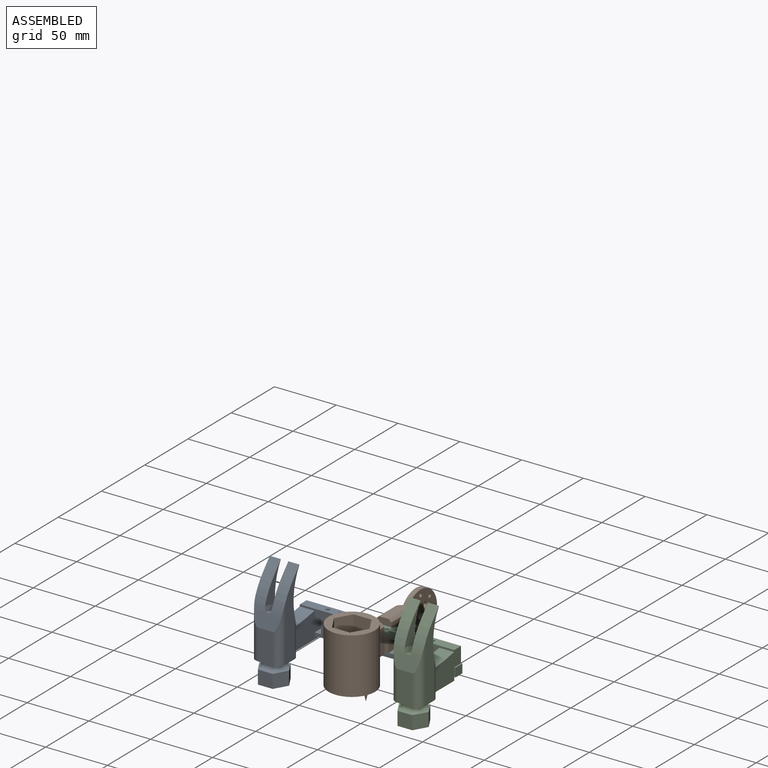
[diagram: assembled view]
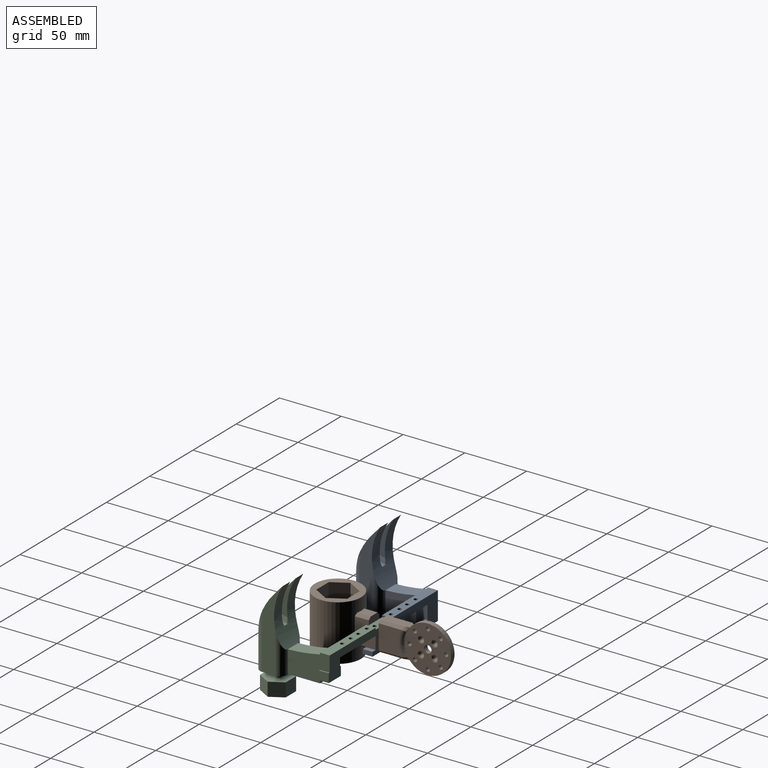
[diagram: assembled view, second angle]
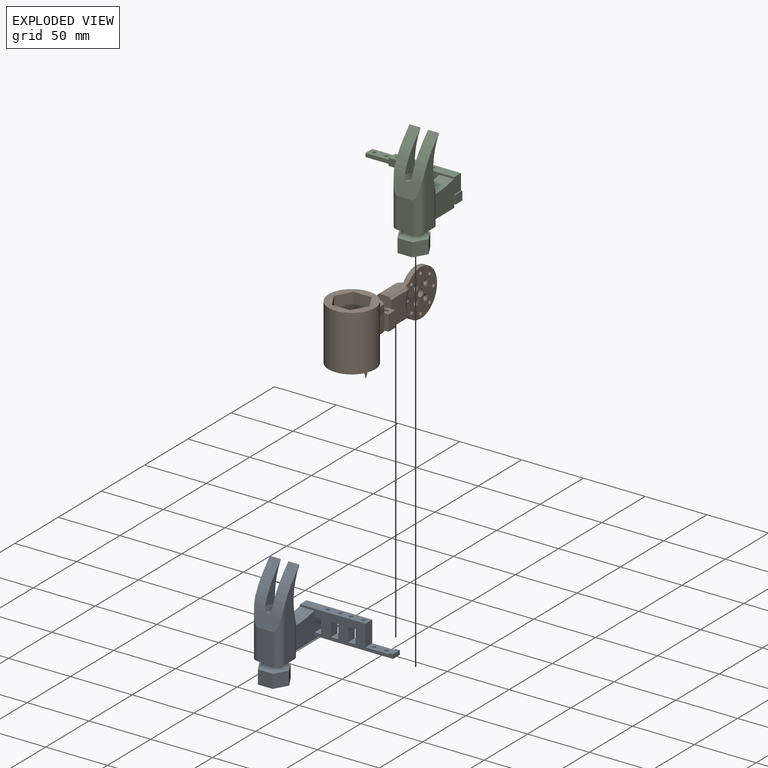
[diagram: exploded view]
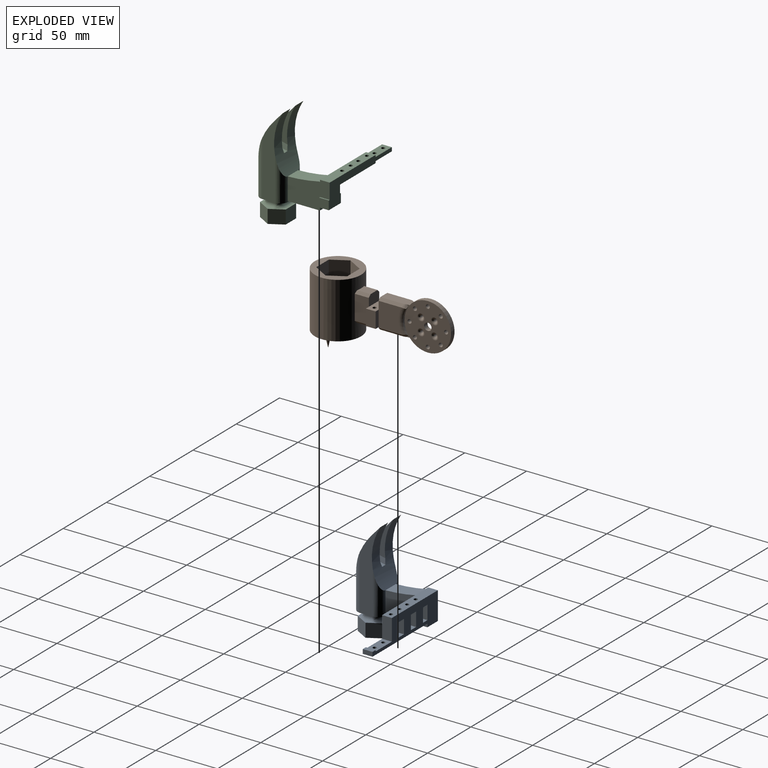
[diagram: exploded view, second angle]
ASSEMBLY  parts=3 mates=2
PART A: 89 faces, bbox 81.7x59x84.3 mm
  f0: plane 17.29x7.85mm, normal (1,0,0), area 135.8mm2, adj f7,f8,f18,f74
  f1: plane 7.85x6mm, normal (0,0,1), area 47.1mm2, adj f7,f18,f79,f82
  f2: plane 7.85x5.13mm, normal (0,0,-1), area 40.2mm2, adj f7,f18,f19,f83
  f3: plane 7.85x5.13mm, normal (0,0,1), area 40.2mm2, adj f7,f18,f19,f83
  f4: cylinder r=1.47mm len=6mm, axis (0,0,-1), area 43.9mm2, adj f5,f74,f80,f81
  f5: plane 7.85x6mm, normal (0,0,-1), area 44.7mm2, adj f4,f7,f18,f76,f80
  f6: plane 7.85x6mm, normal (0,0,1), area 47.1mm2, adj f7,f18,f76,f80
  f7: plane 75.5x22.5mm, normal (0,1,0), area 950.2mm2, adj f0,f1,f2,f3,f5,f6,f8,f9
  f8: plane 18.75x7.85mm, normal (0,0,1), area 133.5mm2, adj f0,f7,f18,f85,f86,f87
  f9: plane 63.5x7.85mm, normal (0,0,-1), area 484.8mm2, adj f7,f18,f19,f75,f85,f86
  f10: plane 12x0.88mm, normal (0,0,1), area 10.6mm2, adj f11,f18,f19,f72
  f11: plane 33.95x22.5mm, normal (-1,0,0), area 676.6mm2, adj f7,f10,f18,f20,f62,f72,f74
  f12: cylinder r=46.09mm len=48.38mm, axis (1,0,0), area 980.1mm2, adj f13,f59,f60,f61,f62,f63,f66,f67
  f13: plane 9.02x8.04mm, normal (0,-0.75,0.67), area 97.4mm2, adj f12,f59,f66,f71
  f14: plane 21.89x10.47mm, normal (0,-0.97,0.24), area 204.4mm2, adj f49,f64,f65,f71
  f15: cylinder r=1.47mm len=3.79mm, axis (0,0,-1), area 35.2mm2, adj f74,f84
  f16: cylinder r=1.47mm len=6mm, axis (0,0,-1), area 51.3mm2, adj f73,f74,f78,f79
  f17: cylinder r=1.47mm len=3.79mm, axis (0,0,-1), area 35.2mm2, adj f74,f77
  f18: plane 75.5x19.79mm, normal (0,-1,0), area 698.2mm2, adj f0,f1,f2,f3,f5,f6,f8,f9
  f19: plane 33.95x21mm, normal (1,0,0), area 609.8mm2, adj f2,f3,f7,f9,f10,f18,f20,f63
  f20: plane 33.95x12mm, normal (0,0,-1), area 407.4mm2, adj f7,f11,f19,f21
  f21: plane 12x0.68mm, normal (0,1,0), area 8.1mm2, adj f20,f58,f62,f63
  f22: plane 12x11mm, normal (0,-1,0), area 132mm2, adj f23,f27,f28,f29
  f23: plane 24x20.78mm, normal (0,0,-1), area 374.1mm2, adj f22,f24,f25,f27,f29,f31
  f24: plane 12x11mm, normal (0,1,0), area 132mm2, adj f23,f25,f31,f32
  f25: plane 11.22x10.62mm, normal (0.87,0.5,0), area 132mm2, adj f23,f24,f26,f27,f32,f34,f35
  f26: plane 4.5x1.3mm, normal (0,0,1), area 2.9mm2, adj f25,f27,f36
  f27: plane 11.22x10.61mm, normal (0.87,-0.5,0), area 132mm2, adj f22,f23,f25,f26,f28,f37,f38
  f28: plane 13.34x1.16mm, normal (0,0,1), area 7.2mm2, adj f22,f27,f29,f39,f40,f41
  f29: plane 11.22x10.62mm, normal (-0.87,-0.5,0), area 132mm2, adj f22,f23,f28,f30,f31,f42,f43
  f30: plane 4.5x1.3mm, normal (0,0,1), area 2.9mm2, adj f29,f31,f44
  f31: plane 11.22x10.61mm, normal (-0.87,0.5,0), area 132mm2, adj f23,f24,f29,f30,f32,f45,f46
  f32: plane 13.34x1.16mm, normal (0,0,1), area 7.2mm2, adj f24,f25,f31,f33,f47,f48
  f33: torus R=7mm, axis (0,0,-1), area 10.5mm2, adj f32,f34,f48,f50
  f34: bspline ~7.68x5.8mm, area 20.8mm2, adj f25,f33,f35,f50
  f35: bspline ~3x3mm, area 2.5mm2, adj f25,f34,f36,f51
  f36: cylinder r=3mm len=4.5mm, axis (0,-1,0), area 21.2mm2, adj f26,f35,f37,f51
  f37: bspline ~3x3mm, area 2.5mm2, adj f27,f36,f38,f51
  f38: bspline ~6.5x5.03mm, area 20.8mm2, adj f27,f37,f39,f52
  f39: torus R=7mm, axis (0,0,-1), area 10.5mm2, adj f28,f38,f40,f52
  f40: cylinder r=3mm len=7.4mm, axis (-1,0,0), area 34.9mm2, adj f28,f39,f41,f53
  f41: torus R=7mm, axis (0,0,-1), area 10.5mm2, adj f28,f40,f42,f54
  f42: bspline ~6.5x5.03mm, area 20.8mm2, adj f29,f41,f43,f54
  f43: bspline ~3x3mm, area 2.5mm2, adj f29,f42,f44,f55
  f44: cylinder r=3mm len=4.5mm, axis (0,1,0), area 21.2mm2, adj f30,f43,f45,f55
  f45: bspline ~3.19x3.18mm, area 2.5mm2, adj f31,f44,f46,f55
  f46: bspline ~7.32x5.58mm, area 20.8mm2, adj f31,f45,f47,f56
  f47: torus R=7mm, axis (0,0,-1), area 10.5mm2, adj f32,f46,f48,f56
  f48: cylinder r=3mm len=7.4mm, axis (1,0,0), area 34.9mm2, adj f32,f33,f47,f57
  f49: plane 24.68x12mm, normal (0,-1,0), area 296.1mm2, adj f14,f58,f64,f65
  f50: cylinder r=4mm len=4mm, axis (0,0,1), area 18.9mm2, adj f33,f34,f51,f57,f58
  f51: plane 5.79x3.02mm, normal (1,0,0), area 17.4mm2, adj f35,f36,f37,f50,f52,f58
  f52: cylinder r=4mm len=4mm, axis (0,0,-1), area 18.9mm2, adj f38,f39,f51,f53,f58
  f53: plane 7.4x3mm, normal (0,-1,0), area 22.2mm2, adj f40,f52,f54,f58
  f54: cylinder r=4mm len=4mm, axis (0,0,-1), area 18.9mm2, adj f41,f42,f53,f55,f58
  f55: plane 5.79x3.02mm, normal (-1,0,0), area 17.4mm2, adj f43,f44,f45,f54,f56,f58
  f56: cylinder r=4mm len=4mm, axis (0,0,1), area 18.9mm2, adj f46,f47,f55,f57,f58
  f57: plane 7.4x3mm, normal (0,1,0), area 22.2mm2, adj f48,f50,f56,f58
  f58: plane 24x22.41mm, normal (0,0,-1), area 308.5mm2, adj f21,f49,f50,f51,f52,f53,f54,f55
  f59: plane 67.06x16.41mm, normal (1,0,0), area 565mm2, adj f12,f13,f58,f63,f64,f71
  f60: plane 67.06x16.41mm, normal (-1,0,0), area 565mm2, adj f12,f58,f61,f62,f65,f71
  f61: plane 9x8.04mm, normal (0,-0.75,0.67), area 97.1mm2, adj f12,f60,f67,f71
  f62: cylinder r=6mm len=34.01mm, axis (0,0,-1), area 218.5mm2, adj f11,f12,f21,f58,f60
  f63: cylinder r=6mm len=34.01mm, axis (0,0,1), area 218.5mm2, adj f12,f19,f21,f58,f59
  f64: cylinder r=6mm len=44.9mm, axis (0,0,-1), area 309mm2, adj f14,f49,f58,f59,f71
  f65: cylinder r=6mm len=44.9mm, axis (0,0,1), area 309mm2, adj f14,f49,f58,f60,f71
  f66: plane 30.21x18.44mm, normal (-1,0,0), area 175.7mm2, adj f12,f13,f70,f71
  f67: plane 30.16x18.42mm, normal (1,0,0), area 175.1mm2, adj f12,f61,f68,f71
  f68: plane 13.87x7.21mm, normal (0.97,0.06,0.24), area 53.8mm2, adj f12,f67,f69,f71
  f69: plane 13.86x3.81mm, normal (0,0.24,0.97), area 54.5mm2, adj f12,f68,f70,f71
  f70: plane 13.87x7.16mm, normal (-0.96,0.07,0.28), area 53.8mm2, adj f12,f66,f69,f71
  f71: cylinder r=56.05mm len=24mm, axis (-1,0,0), area 490.6mm2, adj f13,f14,f59,f60,f61,f64,f65,f66
  f72: cylinder r=132.35mm len=25.22mm, axis (-1,0,0), area 305.2mm2, adj f10,f11,f12,f19
  f73: plane 7.85x6mm, normal (0,0,-1), area 40.6mm2, adj f7,f16,f18,f79,f82
  f74: plane 53.13x7.85mm, normal (0,0,1), area 389.7mm2, adj f0,f4,f7,f11,f15,f16,f17,f18
  f75: plane 7.85x3.5mm, normal (1,0,0), area 27.5mm2, adj f7,f9,f18,f88
  f76: plane 11.29x7.85mm, normal (-1,0,0), area 88.7mm2, adj f5,f6,f7,f18
  f77: plane 2.95x2.95mm, normal (0,0,1), area 6.8mm2, adj f17
  f78: plane 1.81x0.31mm, normal (0,0,1), area 0.4mm2, adj f16,f79
  f79: plane 13.5x7.85mm, normal (-1,0,0), area 92.6mm2, adj f1,f7,f16,f18,f73,f78
  f80: plane 13.5x7.85mm, normal (1,0,0), area 95mm2, adj f4,f5,f6,f7,f18,f81
  f81: plane 2.95x1.81mm, normal (0,0,1), area 4.4mm2, adj f4,f80
  f82: plane 11.29x7.85mm, normal (1,0,0), area 88.7mm2, adj f1,f7,f18,f73
  f83: plane 11.29x7.85mm, normal (-1,0,0), area 88.7mm2, adj f2,f3,f7,f18
  f84: plane 2.95x2.95mm, normal (0,0,1), area 6.8mm2, adj f15
  f85: cylinder r=1.47mm len=2.95mm, axis (0,0,1), area 23.2mm2, adj f8,f9
  f86: cylinder r=1.47mm len=2.95mm, axis (0,0,1), area 23.2mm2, adj f8,f9
  f87: plane 7.85x1mm, normal (-1,0,0), area 7.8mm2, adj f7,f8,f18,f88
  f88: plane 7.85x3.63mm, normal (0,0,1), area 28.5mm2, adj f7,f18,f75,f87
PART B: 82 faces, bbox 112.9x37.8x54.3 mm
  f0: torus R=21.6mm, axis (0,1,0), area 57.9mm2, adj f1,f2,f10,f77
  f1: bspline ~4.6x3.64mm, area 10.3mm2, adj f0,f21,f25,f31,f77
  f2: bspline ~4.6x3.64mm, area 10.3mm2, adj f0,f19,f20,f25,f77
  f3: cylinder r=1.61mm len=4.43mm, axis (0,1,0), area 40.8mm2, adj f5,f8,f25,f62,f71
  f4: cylinder r=1.61mm len=4.43mm, axis (0,1,0), area 40.8mm2, adj f5,f6,f7,f25,f62,f70
  f5: torus R=12.16mm, axis (0,-1,0), area 66.1mm2, adj f3,f4,f6,f7,f8,f26,f62,f69
  f6: cylinder r=1.75mm len=0.47mm, axis (0,-1,0), area 0mm2, adj f4,f5,f62
  f7: bspline ~4.05x3.77mm, area 10.1mm2, adj f4,f5,f21,f28,f62
  f8: bspline ~4.05x3.77mm, area 10.1mm2, adj f3,f5,f20,f30,f62
  f9: plane 18.75x7.88mm, normal (0,0,1), area 134.2mm2, adj f36,f37,f38,f39,f40,f41,f42,f43
  f10: plane 19.79x18.74mm, normal (0,1,0), area 338.9mm2, adj f0,f19,f31,f33,f42,f60
  f11: plane 19.79x19.26mm, normal (0,-1,0), area 348.4mm2, adj f18,f26,f27,f33,f38,f60
  f12: plane 10.86x8mm, normal (0,0,1), area 84.6mm2, adj f13,f14,f22,f61
  f13: plane 11.43x2.02mm, normal (0,-0.71,0.71), area 31.5mm2, adj f12,f16,f22,f61
  f14: plane 11.43x2.02mm, normal (0,0.71,0.71), area 31.5mm2, adj f12,f15,f22,f61
  f15: plane 19.79x11.42mm, normal (0,1,0), area 226mm2, adj f14,f22,f32,f34,f40,f61
  f16: plane 19.79x11.42mm, normal (0,-1,0), area 226mm2, adj f13,f22,f29,f34,f39,f61
  f17: plane 10.86x8mm, normal (0,0,-1), area 84.6mm2, adj f22,f29,f32,f34
  f18: plane 19.26x2mm, normal (0,-0.71,-0.71), area 54.5mm2, adj f11,f20,f30,f33
  f19: plane 18.74x2mm, normal (0,0.71,-0.71), area 53mm2, adj f2,f10,f20,f33
  f20: plane 23.77x8.04mm, normal (0,0,-1), area 180.6mm2, adj f2,f8,f18,f19,f25,f30,f33,f62
  f21: plane 23.77x8.04mm, normal (0,0,1), area 180.6mm2, adj f1,f7,f25,f27,f28,f31,f60,f62
  f22: cylinder r=18.75mm len=45mm, axis (0,0,-1), area 5019.1mm2, adj f12,f13,f14,f15,f16,f17,f23,f24
  f23: plane 37.5x37.5mm, normal (0,0,1), area 274.9mm2, adj f22,f44
  f24: plane 37.5x37.5mm, normal (0,0,-1), area 563.2mm2, adj f22,f53,f54,f55,f56,f57,f58
  f25: plane 37.95x37.95mm, normal (0,1,0), area 908.8mm2, adj f1,f2,f3,f4,f20,f21,f63,f64
  f26: torus R=21.14mm, axis (0,1,0), area 109.1mm2, adj f5,f11,f28,f30
  f27: plane 19.26x2mm, normal (0,-0.71,0.71), area 54.5mm2, adj f11,f21,f28,f60
  f28: bspline ~4.63x3.68mm, area 14.9mm2, adj f7,f21,f26,f27
  f29: plane 11.43x2.02mm, normal (0,-0.71,-0.71), area 31.5mm2, adj f16,f17,f22,f34
  f30: bspline ~4.63x3.68mm, area 14.9mm2, adj f8,f18,f20,f26
  f31: plane 18.74x2mm, normal (0,0.71,0.71), area 53mm2, adj f1,f10,f21,f60
  f32: plane 11.43x2.02mm, normal (0,0.71,-0.71), area 31.5mm2, adj f15,f17,f22,f34
  f33: plane 12x8.5mm, normal (-1,0,0), area 98mm2, adj f10,f11,f18,f19,f20,f35
  f34: plane 12x8.5mm, normal (1,0,0), area 98mm2, adj f15,f16,f17,f29,f32,f35
  f35: plane 18.75x7.88mm, normal (0,0,-1), area 134.2mm2, adj f33,f34,f36,f37,f38,f39,f40,f41
  f36: plane 12.79x7.88mm, normal (0,-1,0), area 100.8mm2, adj f9,f35,f38,f39
  f37: cylinder r=1.47mm len=12.79mm, axis (0,0,-1), area 118.2mm2, adj f9,f35
  f38: plane 12.79x3.38mm, normal (1,0,0), area 43.2mm2, adj f9,f11,f35,f36
  f39: plane 12.79x3.38mm, normal (-1,0,0), area 43.2mm2, adj f9,f16,f35,f36
  f40: plane 12.79x3.38mm, normal (-1,0,0), area 43.2mm2, adj f9,f15,f35,f41
  f41: plane 12.79x7.88mm, normal (0,1,0), area 100.8mm2, adj f9,f35,f40,f42
  f42: plane 12.79x3.38mm, normal (1,0,0), area 43.2mm2, adj f9,f10,f35,f41
  f43: cylinder r=1.47mm len=12.79mm, axis (0,0,-1), area 118.2mm2, adj f9,f35
  f44: cone r=14.25mm half-angle=45deg, axis (0,0,-1), area 271mm2, adj f23,f45
  f45: cylinder r=14.25mm len=28.5mm, axis (0,0,-1), area 178.4mm2, adj f44,f47,f51,f52
  f46: cone r=0mm half-angle=24deg, axis (0,0,-1), area 93.3mm2, adj f48
  f47: plane 28.5x27.92mm, normal (0,0,1), area 466.7mm2, adj f45,f48,f51,f52
  f48: torus R=5.3mm, axis (0,0,1), area 61.8mm2, adj f46,f47
  f49: cone r=0mm half-angle=12.5deg, axis (0,0,-1), area 37.4mm2, adj f52
  f50: cone r=0mm half-angle=12.5deg, axis (0,0,-1), area 37.4mm2, adj f51
  f51: torus R=3.81mm, axis (0,0,1), area 43.6mm2, adj f45,f47,f50
  f52: torus R=3.81mm, axis (0,0,1), area 45mm2, adj f45,f47,f49
  f53: plane 32x12.5mm, normal (-0.5,-0.87,0), area 461.9mm2, adj f24,f54,f58,f59
  f54: plane 32x12.5mm, normal (0.5,-0.87,0), area 461.9mm2, adj f24,f53,f55,f59
  f55: plane 32x14.43mm, normal (1,0,0), area 461.9mm2, adj f24,f54,f56,f59
  f56: plane 32x12.5mm, normal (0.5,0.87,0), area 461.9mm2, adj f24,f55,f57,f59
  f57: plane 32x12.5mm, normal (-0.5,0.87,0), area 461.9mm2, adj f24,f56,f58,f59
  f58: plane 32x14.43mm, normal (-1,0,0), area 461.9mm2, adj f24,f53,f57,f59
  f59: plane 28.87x25mm, normal (0,0,-1), area 541.3mm2, adj f53,f54,f55,f56,f57,f58
  f60: plane 12x2.5mm, normal (-1,0,0), area 26mm2, adj f9,f10,f11,f21,f27,f31
  f61: plane 12x2.5mm, normal (1,0,0), area 26mm2, adj f9,f12,f13,f14,f15,f16
  f62: plane 38.03x33.81mm, normal (0,-1,0), area 896.4mm2, adj f3,f4,f5,f6,f7,f8,f20,f21
  f63: cylinder r=18.87mm len=37.74mm, axis (0,1,0), area 371.3mm2, adj f20,f21,f25,f62
  f64: cylinder r=1.61mm len=4mm, axis (0,1,0), area 40.5mm2, adj f25,f62
  f65: cylinder r=1.61mm len=4mm, axis (0,1,0), area 40.5mm2, adj f25,f62
  f66: cylinder r=1.61mm len=4mm, axis (0,1,0), area 40.5mm2, adj f25,f62
  f67: cylinder r=1.61mm len=4mm, axis (0,1,0), area 40.5mm2, adj f25,f62
  f68: cylinder r=1.61mm len=4mm, axis (0,1,0), area 40.5mm2, adj f25,f62
  f69: cylinder r=1.61mm len=6.09mm, axis (0,1,0), area 48.2mm2, adj f5,f25,f62
  f70: plane 3.18x1.83mm, normal (0,1,0), area 1.4mm2, adj f4,f25
  f71: plane 3.18x1.83mm, normal (0,1,0), area 1.4mm2, adj f3,f25
  f72: cylinder r=3.01mm len=6.03mm, axis (0,1,0), area 75.8mm2, adj f25,f62
  f73: cylinder r=1.34mm len=2.69mm, axis (0,1,0), area 19.4mm2, adj f62,f81
  f74: cylinder r=1.34mm len=2.69mm, axis (0,1,0), area 19.4mm2, adj f62,f80
  f75: cylinder r=1.34mm len=2.69mm, axis (0,1,0), area 19.4mm2, adj f62,f79
  f76: cylinder r=1.34mm len=2.69mm, axis (0,1,0), area 19.4mm2, adj f62,f78
  f77: cylinder r=18.87mm len=20.96mm, axis (0,-1,0), area 39.5mm2, adj f0,f1,f2,f25
  f78: torus R=3.04mm, axis (0,1,0), area 32.9mm2, adj f25,f76
  f79: torus R=3.04mm, axis (0,1,0), area 32.9mm2, adj f25,f75
  f80: torus R=3.04mm, axis (0,1,0), area 32.9mm2, adj f25,f74
  f81: torus R=3.04mm, axis (0,1,0), area 32.9mm2, adj f25,f73
PART C: 86 faces, bbox 78.1x59x84.3 mm
  f0: plane 72.94x19.79mm, normal (0,1,0), area 554.9mm2, adj f2,f3,f4,f6,f8,f70,f71,f72
  f1: plane 71.88x6mm, normal (0,-1,0), area 321mm2, adj f2,f3,f6,f7,f8,f70,f71,f72
  f2: plane 33.95x22.5mm, normal (1,0,0), area 599.8mm2, adj f0,f1,f5,f7,f60,f69,f73,f74
  f3: plane 33.95x21mm, normal (-1,0,0), area 553.5mm2, adj f0,f1,f5,f7,f59,f69,f71,f74
  f4: plane 14x7.88mm, normal (0,0,-1), area 96.7mm2, adj f0,f74,f75,f77,f79,f81,f82,f84
  f5: plane 26.07x12mm, normal (0,0,-1), area 312.8mm2, adj f2,f3,f50,f74
  f6: plane 18.75x7.85mm, normal (0,0,1), area 133.5mm2, adj f0,f1,f55,f56,f72,f85
  f7: plane 12x0.88mm, normal (0,0,1), area 10.6mm2, adj f1,f2,f3,f69
  f8: plane 18.75x7.85mm, normal (0,0,-1), area 133.5mm2, adj f0,f1,f55,f56,f70,f85
  f9: cylinder r=46.09mm len=48.38mm, axis (1,0,0), area 980.1mm2, adj f10,f19,f20,f57,f59,f60,f63,f64
  f10: plane 9x8.04mm, normal (0,-0.75,0.67), area 97.1mm2, adj f9,f20,f63,f68
  f11: plane 24x22.41mm, normal (0,0,-1), area 308.5mm2, adj f16,f17,f18,f19,f20,f28,f29,f30
  f12: plane 4.5x1.3mm, normal (0,0,1), area 2.9mm2, adj f23,f26,f48
  f13: plane 13.34x1.16mm, normal (0,0,1), area 7.2mm2, adj f24,f25,f26,f41,f43,f45
  f14: plane 13.34x1.16mm, normal (0,0,1), area 7.2mm2, adj f15,f22,f23,f38,f40,f42
  f15: plane 12x11mm, normal (0,-1,0), area 132mm2, adj f14,f21,f22,f23
  f16: plane 5.79x3.02mm, normal (-1,0,0), area 17.4mm2, adj f11,f30,f32,f46,f48,f49
  f17: plane 5.79x3.02mm, normal (1,0,0), area 17.4mm2, adj f11,f31,f33,f34,f35,f37
  f18: plane 24.68x12mm, normal (0,-1,0), area 296.1mm2, adj f11,f58,f61,f62
  f19: plane 67.06x16.41mm, normal (-1,0,0), area 565mm2, adj f9,f11,f57,f59,f62,f68
  f20: plane 67.06x16.41mm, normal (1,0,0), area 565mm2, adj f9,f10,f11,f60,f61,f68
  f21: plane 24x20.78mm, normal (0,0,-1), area 374.1mm2, adj f15,f22,f23,f24,f25,f26
  f22: plane 11.22x10.61mm, normal (0.87,-0.5,0), area 132mm2, adj f14,f15,f21,f24,f27,f34,f36
  f23: plane 11.22x10.62mm, normal (-0.87,-0.5,0), area 132mm2, adj f12,f14,f15,f21,f26,f44,f46
  f24: plane 11.22x10.62mm, normal (0.87,0.5,0), area 132mm2, adj f13,f21,f22,f25,f27,f37,f39
  f25: plane 12x11mm, normal (0,1,0), area 132mm2, adj f13,f21,f24,f26
  f26: plane 11.22x10.61mm, normal (-0.87,0.5,0), area 132mm2, adj f12,f13,f21,f23,f25,f47,f49
  f27: plane 4.5x1.3mm, normal (0,0,1), area 2.9mm2, adj f22,f24,f35
  f28: plane 7.4x3mm, normal (0,1,0), area 22.2mm2, adj f11,f32,f33,f43
  f29: plane 7.4x3mm, normal (0,-1,0), area 22.2mm2, adj f11,f30,f31,f40
  f30: cylinder r=4mm len=4mm, axis (0,0,1), area 18.9mm2, adj f11,f16,f29,f42,f44
  f31: cylinder r=4mm len=4mm, axis (0,0,-1), area 18.9mm2, adj f11,f17,f29,f36,f38
  f32: cylinder r=4mm len=4mm, axis (0,0,-1), area 18.9mm2, adj f11,f16,f28,f45,f47
  f33: cylinder r=4mm len=4mm, axis (0,0,1), area 18.9mm2, adj f11,f17,f28,f39,f41
  f34: bspline ~3x3mm, area 2.5mm2, adj f17,f22,f35,f36
  f35: cylinder r=3mm len=4.5mm, axis (0,-1,0), area 21.2mm2, adj f17,f27,f34,f37
  f36: bspline ~6.5x5.03mm, area 20.8mm2, adj f22,f31,f34,f38
  f37: bspline ~3.19x3.18mm, area 2.5mm2, adj f17,f24,f35,f39
  f38: torus R=7mm, axis (0,0,-1), area 10.5mm2, adj f14,f31,f36,f40
  f39: bspline ~7.68x5.8mm, area 20.8mm2, adj f24,f33,f37,f41
  f40: cylinder r=3mm len=7.4mm, axis (-1,0,0), area 34.9mm2, adj f14,f29,f38,f42
  f41: torus R=7mm, axis (0,0,-1), area 10.5mm2, adj f13,f33,f39,f43
  f42: torus R=7mm, axis (0,0,-1), area 10.5mm2, adj f14,f30,f40,f44
  f43: cylinder r=3mm len=7.4mm, axis (1,0,0), area 34.9mm2, adj f13,f28,f41,f45
  f44: bspline ~7.68x5.8mm, area 20.8mm2, adj f23,f30,f42,f46
  f45: torus R=7mm, axis (0,0,-1), area 10.5mm2, adj f13,f32,f43,f47
  f46: bspline ~3x3mm, area 2.5mm2, adj f16,f23,f44,f48
  f47: bspline ~6.5x5.03mm, area 20.8mm2, adj f26,f32,f45,f49
  f48: cylinder r=3mm len=4.5mm, axis (0,1,0), area 21.2mm2, adj f12,f16,f46,f49
  f49: bspline ~3x3mm, area 2.5mm2, adj f16,f26,f47,f48
  f50: plane 12x0.68mm, normal (0,1,0), area 8.1mm2, adj f5,f11,f59,f60
  f51: cylinder r=1.47mm len=6mm, axis (0,0,-1), area 55.6mm2, adj f71,f73
  f52: cylinder r=1.47mm len=6mm, axis (0,0,-1), area 55.6mm2, adj f71,f73
  f53: cylinder r=1.47mm len=6mm, axis (0,0,-1), area 55.6mm2, adj f71,f73
  f54: cylinder r=1.47mm len=6mm, axis (0,0,-1), area 55.6mm2, adj f71,f73
  f55: cylinder r=1.47mm len=3mm, axis (0,0,-1), area 27.8mm2, adj f6,f8
  f56: cylinder r=1.47mm len=3mm, axis (0,0,-1), area 27.8mm2, adj f6,f8
  f57: plane 9.02x8.04mm, normal (0,-0.75,0.67), area 97.4mm2, adj f9,f19,f64,f68
  f58: plane 21.89x10.47mm, normal (0,-0.97,0.24), area 204.4mm2, adj f18,f61,f62,f68
  f59: cylinder r=6mm len=34.01mm, axis (0,0,-1), area 218.5mm2, adj f3,f9,f11,f19,f50
  f60: cylinder r=6mm len=34.01mm, axis (0,0,1), area 218.5mm2, adj f2,f9,f11,f20,f50
  f61: cylinder r=6mm len=44.9mm, axis (0,0,-1), area 309mm2, adj f11,f18,f20,f58,f68
  f62: cylinder r=6mm len=44.9mm, axis (0,0,1), area 309mm2, adj f11,f18,f19,f58,f68
  f63: plane 30.16x18.42mm, normal (-1,0,0), area 175.1mm2, adj f9,f10,f67,f68
  f64: plane 30.21x18.44mm, normal (1,0,0), area 175.7mm2, adj f9,f57,f65,f68
  f65: plane 13.87x7.16mm, normal (0.96,0.07,0.28), area 53.8mm2, adj f9,f64,f66,f68
  f66: plane 13.86x3.81mm, normal (0,0.24,0.97), area 54.5mm2, adj f9,f65,f67,f68
  f67: plane 13.87x7.21mm, normal (-0.97,0.06,0.24), area 53.8mm2, adj f9,f63,f66,f68
  f68: cylinder r=56.05mm len=24mm, axis (1,0,0), area 490.6mm2, adj f10,f19,f20,f57,f58,f61,f62,f63
  f69: cylinder r=132.35mm len=25.22mm, axis (-1,0,0), area 305.2mm2, adj f2,f3,f7,f9
  f70: plane 7.85x1.5mm, normal (-1,0,0), area 11.8mm2, adj f0,f1,f8,f71
  f71: plane 41.13x7.85mm, normal (0,0,-1), area 295.5mm2, adj f0,f1,f3,f51,f52,f53,f54,f70
  f72: plane 7.85x1.5mm, normal (-1,0,0), area 11.8mm2, adj f0,f1,f6,f73
  f73: plane 53.13x7.85mm, normal (0,0,1), area 389.7mm2, adj f0,f1,f2,f51,f52,f53,f54,f72
  f74: plane 12x2.71mm, normal (0,1,0), area 32.5mm2, adj f2,f3,f4,f5
  f75: cylinder r=1.47mm len=7.18mm, axis (0,0,-1), area 61.6mm2, adj f3,f4,f76,f80
  f76: plane 2.95x2.27mm, normal (0,0,-1), area 5.6mm2, adj f3,f75
  f77: cylinder r=1.47mm len=7.18mm, axis (0,0,-1), area 60.5mm2, adj f2,f4,f78,f83
  f78: plane 2.95x2.77mm, normal (0,0,-1), area 6.7mm2, adj f2,f77
  f79: plane 7.88x7.18mm, normal (-1,0,0), area 56.6mm2, adj f0,f4,f80,f81
  f80: plane 7.88x0.94mm, normal (0,0,1), area 6.2mm2, adj f0,f3,f75,f79,f81
  f81: plane 7.18x0.94mm, normal (0,-1,0), area 6.7mm2, adj f3,f4,f79,f80
  f82: plane 7.18x1.07mm, normal (0,-1,0), area 7.6mm2, adj f2,f4,f83,f84
  f83: plane 7.88x1.07mm, normal (0,0,1), area 8.2mm2, adj f0,f2,f77,f82,f84
  f84: plane 7.88x7.18mm, normal (1,0,0), area 56.6mm2, adj f0,f4,f82,f83
  f85: plane 7.85x3mm, normal (-1,0,0), area 23.6mm2, adj f0,f1,f6,f8
PLACE A t=(-124.85,-95.72,87.91)mm
PLACE B rot(axis=(-0.71,-0.71,0),180deg) t=(-124.85,-124.91,106.23)mm
PLACE C t=(-124.84,-95.72,87.91)mm
MATE fastened A.f86 <-> B.f43  axis (0,0,1) through (-119.89,-91.79,75.11)mm
MATE fastened B.f37 <-> C.f56  axis (0,0,1) through (-129.8,-91.79,87.91)mm
